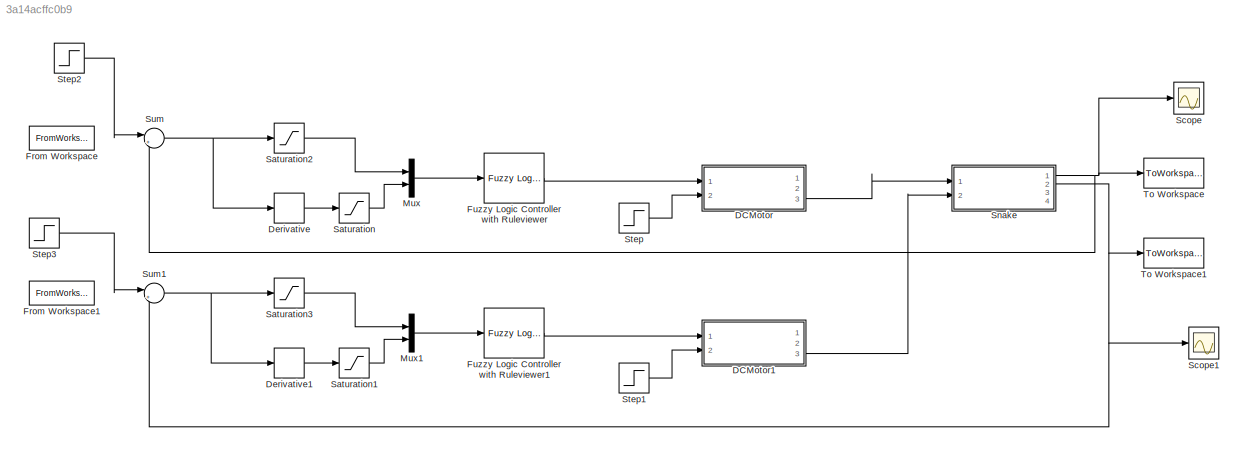
MODEL slx_3a14acffc0b9
KIND model
CONFIG AbsTol = auto
CONFIG FixedStep = 0.01
CONFIG MaxStep = auto
CONFIG MinStep = auto
CONFIG RelTol = 1e-3
CONFIG SampleTimeConstraint = Unconstrained
CONFIG Solver = FixedStepAuto
CONFIG SolverMode = Auto
CONFIG SolverName = FixedStepAuto
CONFIG StartTime = 0.0
CONFIG StopTime = 70
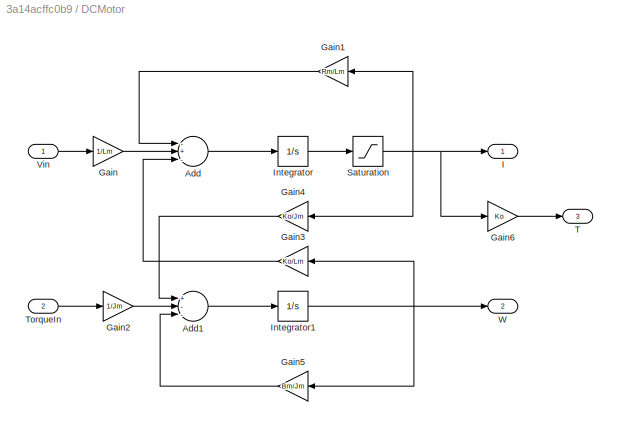
BLOCK [SubSystem] DCMotor
  Ports = [2, 3]
  RequestExecContextInheritance = off
  Variant = off
BLOCK [Sum] DCMotor/Add
  InputSameDT = off
  Inputs = -+-
  OutDataTypeStr = Inherit: Inherit via internal rule
  Ports = [3, 1]
  SaturateOnIntegerOverflow = off
BLOCK [Sum] DCMotor/Add1
  InputSameDT = off
  Inputs = +--
  OutDataTypeStr = Inherit: Inherit via internal rule
  Ports = [3, 1]
  SaturateOnIntegerOverflow = off
BLOCK [Gain] DCMotor/Gain
  Gain = 1/Lm
  OutDataTypeStr = Inherit: Inherit via internal rule
  ParamDataTypeStr = Inherit: Inherit via internal rule
  SaturateOnIntegerOverflow = off
BLOCK [Gain] DCMotor/Gain1
  Gain = Rm/Lm
  OutDataTypeStr = Inherit: Inherit via internal rule
  ParamDataTypeStr = Inherit: Inherit via internal rule
  SaturateOnIntegerOverflow = off
BLOCK [Gain] DCMotor/Gain2
  Gain = 1/Jm
  OutDataTypeStr = Inherit: Inherit via internal rule
  ParamDataTypeStr = Inherit: Inherit via internal rule
  SaturateOnIntegerOverflow = off
BLOCK [Gain] DCMotor/Gain3
  Gain = Ko/Lm
  OutDataTypeStr = Inherit: Inherit via internal rule
  ParamDataTypeStr = Inherit: Inherit via internal rule
  SaturateOnIntegerOverflow = off
BLOCK [Gain] DCMotor/Gain4
  Gain = Ko/Jm
  OutDataTypeStr = Inherit: Inherit via internal rule
  ParamDataTypeStr = Inherit: Inherit via internal rule
  SaturateOnIntegerOverflow = off
BLOCK [Gain] DCMotor/Gain5
  Gain = Bm/Jm
  OutDataTypeStr = Inherit: Inherit via internal rule
  ParamDataTypeStr = Inherit: Inherit via internal rule
  SaturateOnIntegerOverflow = off
BLOCK [Gain] DCMotor/Gain6
  Gain = Ko
  OutDataTypeStr = Inherit: Inherit via internal rule
  ParamDataTypeStr = Inherit: Inherit via internal rule
  SaturateOnIntegerOverflow = off
BLOCK [Outport] DCMotor/I
  IconDisplay = Port number
BLOCK [Integrator] DCMotor/Integrator
  Ports = [1, 1]
BLOCK [Integrator] DCMotor/Integrator1
  Ports = [1, 1]
BLOCK [Saturate] DCMotor/Saturation
  InputPortMap = u0
  LowerLimit = -3.5
  Ports = [1, 1]
  UpperLimit = 3.5
BLOCK [Outport] DCMotor/T
  IconDisplay = Port number
  Port = 3
BLOCK [Inport] DCMotor/TorqueIn
  IconDisplay = Port number
  Port = 2
BLOCK [Inport] DCMotor/Vin
  IconDisplay = Port number
BLOCK [Outport] DCMotor/W
  IconDisplay = Port number
  Port = 2
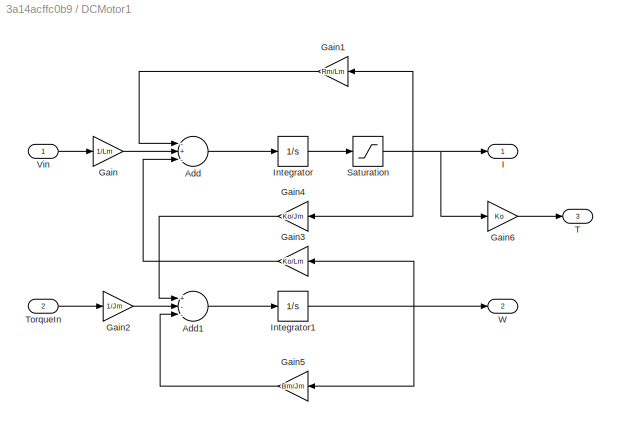
BLOCK [SubSystem] DCMotor1
  Ports = [2, 3]
  RequestExecContextInheritance = off
  Variant = off
BLOCK [Sum] DCMotor1/Add
  InputSameDT = off
  Inputs = -+-
  OutDataTypeStr = Inherit: Inherit via internal rule
  Ports = [3, 1]
  SaturateOnIntegerOverflow = off
BLOCK [Sum] DCMotor1/Add1
  InputSameDT = off
  Inputs = +--
  OutDataTypeStr = Inherit: Inherit via internal rule
  Ports = [3, 1]
  SaturateOnIntegerOverflow = off
BLOCK [Gain] DCMotor1/Gain
  Gain = 1/Lm
  OutDataTypeStr = Inherit: Inherit via internal rule
  ParamDataTypeStr = Inherit: Inherit via internal rule
  SaturateOnIntegerOverflow = off
BLOCK [Gain] DCMotor1/Gain1
  Gain = Rm/Lm
  OutDataTypeStr = Inherit: Inherit via internal rule
  ParamDataTypeStr = Inherit: Inherit via internal rule
  SaturateOnIntegerOverflow = off
BLOCK [Gain] DCMotor1/Gain2
  Gain = 1/Jm
  OutDataTypeStr = Inherit: Inherit via internal rule
  ParamDataTypeStr = Inherit: Inherit via internal rule
  SaturateOnIntegerOverflow = off
BLOCK [Gain] DCMotor1/Gain3
  Gain = Ko/Lm
  OutDataTypeStr = Inherit: Inherit via internal rule
  ParamDataTypeStr = Inherit: Inherit via internal rule
  SaturateOnIntegerOverflow = off
BLOCK [Gain] DCMotor1/Gain4
  Gain = Ko/Jm
  OutDataTypeStr = Inherit: Inherit via internal rule
  ParamDataTypeStr = Inherit: Inherit via internal rule
  SaturateOnIntegerOverflow = off
BLOCK [Gain] DCMotor1/Gain5
  Gain = Bm/Jm
  OutDataTypeStr = Inherit: Inherit via internal rule
  ParamDataTypeStr = Inherit: Inherit via internal rule
  SaturateOnIntegerOverflow = off
BLOCK [Gain] DCMotor1/Gain6
  Gain = Ko
  OutDataTypeStr = Inherit: Inherit via internal rule
  ParamDataTypeStr = Inherit: Inherit via internal rule
  SaturateOnIntegerOverflow = off
BLOCK [Outport] DCMotor1/I
  IconDisplay = Port number
BLOCK [Integrator] DCMotor1/Integrator
  Ports = [1, 1]
BLOCK [Integrator] DCMotor1/Integrator1
  Ports = [1, 1]
BLOCK [Saturate] DCMotor1/Saturation
  InputPortMap = u0
  LowerLimit = -3.5
  Ports = [1, 1]
  UpperLimit = 3.5
BLOCK [Outport] DCMotor1/T
  IconDisplay = Port number
  Port = 3
BLOCK [Inport] DCMotor1/TorqueIn
  IconDisplay = Port number
  Port = 2
BLOCK [Inport] DCMotor1/Vin
  IconDisplay = Port number
BLOCK [Outport] DCMotor1/W
  IconDisplay = Port number
  Port = 2
BLOCK [Derivative] Derivative
BLOCK [Derivative] Derivative1
BLOCK [FromWorkspace] From Workspace
  VariableName = [t', O1Ref']
  ZeroCross = on
BLOCK [FromWorkspace] From Workspace1
  VariableName = [t', O2Ref']
  ZeroCross = on
BLOCK [Reference] Fuzzy Logic Controller with Ruleviewer  REF=fuzblock/Fuzzy Logic   (lib defined in mdl_858b3b3e7478)
Controller 
with Ruleviewer
  Ports = [1, 1]
  SourceBlock = fuzblock/Fuzzy Logic \nController \nwith Ruleviewer
  SourceType = FIS
BLOCK [Reference] Fuzzy Logic Controller with Ruleviewer1  REF=fuzblock/Fuzzy Logic   (lib defined in mdl_858b3b3e7478)
Controller 
with Ruleviewer
  Ports = [1, 1]
  SourceBlock = fuzblock/Fuzzy Logic \nController \nwith Ruleviewer
  SourceType = FIS
BLOCK [Mux] Mux
  DisplayOption = bar
  Inputs = 2
  Ports = [2, 1]
BLOCK [Mux] Mux1
  DisplayOption = bar
  Inputs = 2
  Ports = [2, 1]
BLOCK [Saturate] Saturation
  InputPortMap = u0
  LowerLimit = -pi
  Ports = [1, 1]
  UpperLimit = pi
BLOCK [Saturate] Saturation1
  InputPortMap = u0
  LowerLimit = -pi
  Ports = [1, 1]
  UpperLimit = pi
BLOCK [Saturate] Saturation2
  InputPortMap = u0
  LowerLimit = -pi/2
  Ports = [1, 1]
  UpperLimit = pi/2
BLOCK [Saturate] Saturation3
  InputPortMap = u0
  LowerLimit = -pi/2
  Ports = [1, 1]
  UpperLimit = pi/2
BLOCK [Scope] Scope
  Ports = [1]
  ScopeSpecificationString = Simulink.scopes.TimeScopeBlockCfg('CurrentConfiguration', extmgr.ConfigurationSet(extmgr.Configuration('Core','General UI',true),extmgr.Configuration('Core','Source UI',true),extmgr.Configuration('Sources','WiredSimulink',true),extmgr.Configuration('Visuals','Time Domain',true,'SerializedDisplays',{struct('MinYLimReal','-0.12473','MaxYLimReal','1.12255','YLabelReal','','MinYLimMag','0.00000','MaxY...<+1327ch>
BLOCK [Scope] Scope1
  Ports = [1]
  ScopeSpecificationString = Simulink.scopes.TimeScopeBlockCfg('CurrentConfiguration', extmgr.ConfigurationSet(extmgr.Configuration('Core','General UI',true),extmgr.Configuration('Core','Source UI',true),extmgr.Configuration('Sources','WiredSimulink',true,'DataLoggingVariableName','ScopeData1'),extmgr.Configuration('Visuals','Time Domain',true,'SerializedDisplays',{struct('MinYLimReal','-0.12473','MaxYLimReal','1.12255','YLab...<+1366ch>
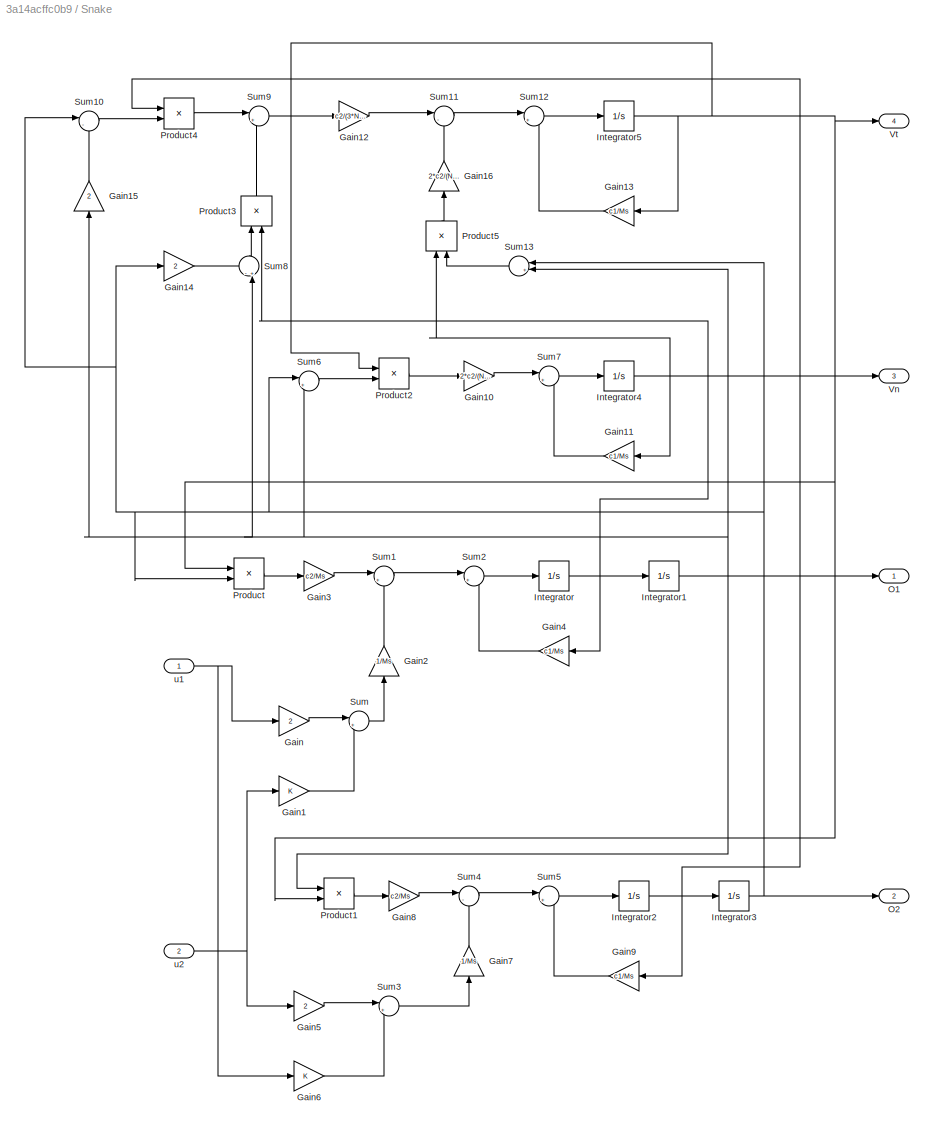
BLOCK [SubSystem] Snake
  Ports = [2, 4]
  RequestExecContextInheritance = off
  Variant = off
BLOCK [Gain] Snake/Gain
  Gain = 2
  OutDataTypeStr = Inherit: Inherit via internal rule
  ParamDataTypeStr = Inherit: Inherit via internal rule
  SaturateOnIntegerOverflow = off
BLOCK [Gain] Snake/Gain1
  OutDataTypeStr = Inherit: Inherit via internal rule
  ParamDataTypeStr = Inherit: Inherit via internal rule
  SaturateOnIntegerOverflow = off
BLOCK [Gain] Snake/Gain10
  Gain = 2*c2/(N*Ms)
  OutDataTypeStr = Inherit: Inherit via internal rule
  ParamDataTypeStr = Inherit: Inherit via internal rule
  SaturateOnIntegerOverflow = off
BLOCK [Gain] Snake/Gain11
  Gain = c1/Ms
  OutDataTypeStr = Inherit: Inherit via internal rule
  ParamDataTypeStr = Inherit: Inherit via internal rule
  SaturateOnIntegerOverflow = off
BLOCK [Gain] Snake/Gain12
  Gain = c2/(3*N*Ms)
  OutDataTypeStr = Inherit: Inherit via internal rule
  ParamDataTypeStr = Inherit: Inherit via internal rule
  SaturateOnIntegerOverflow = off
BLOCK [Gain] Snake/Gain13
  Gain = c1/Ms
  OutDataTypeStr = Inherit: Inherit via internal rule
  ParamDataTypeStr = Inherit: Inherit via internal rule
  SaturateOnIntegerOverflow = off
BLOCK [Gain] Snake/Gain14
  Gain = 2
  OutDataTypeStr = Inherit: Inherit via internal rule
  ParamDataTypeStr = Inherit: Inherit via internal rule
  SaturateOnIntegerOverflow = off
BLOCK [Gain] Snake/Gain15
  Gain = 2
  OutDataTypeStr = Inherit: Inherit via internal rule
  ParamDataTypeStr = Inherit: Inherit via internal rule
  SaturateOnIntegerOverflow = off
BLOCK [Gain] Snake/Gain16
  Gain = 2*c2/(N*Ms)
  OutDataTypeStr = Inherit: Inherit via internal rule
  ParamDataTypeStr = Inherit: Inherit via internal rule
  SaturateOnIntegerOverflow = off
BLOCK [Gain] Snake/Gain2
  Gain = 1/Ms
  OutDataTypeStr = Inherit: Inherit via internal rule
  ParamDataTypeStr = Inherit: Inherit via internal rule
  SaturateOnIntegerOverflow = off
BLOCK [Gain] Snake/Gain3
  Gain = c2/Ms
  OutDataTypeStr = Inherit: Inherit via internal rule
  ParamDataTypeStr = Inherit: Inherit via internal rule
  SaturateOnIntegerOverflow = off
BLOCK [Gain] Snake/Gain4
  Gain = c1/Ms
  OutDataTypeStr = Inherit: Inherit via internal rule
  ParamDataTypeStr = Inherit: Inherit via internal rule
  SaturateOnIntegerOverflow = off
BLOCK [Gain] Snake/Gain5
  Gain = 2
  OutDataTypeStr = Inherit: Inherit via internal rule
  ParamDataTypeStr = Inherit: Inherit via internal rule
  SaturateOnIntegerOverflow = off
BLOCK [Gain] Snake/Gain6
  OutDataTypeStr = Inherit: Inherit via internal rule
  ParamDataTypeStr = Inherit: Inherit via internal rule
  SaturateOnIntegerOverflow = off
BLOCK [Gain] Snake/Gain7
  Gain = 1/Ms
  OutDataTypeStr = Inherit: Inherit via internal rule
  ParamDataTypeStr = Inherit: Inherit via internal rule
  SaturateOnIntegerOverflow = off
BLOCK [Gain] Snake/Gain8
  Gain = c2/Ms
  OutDataTypeStr = Inherit: Inherit via internal rule
  ParamDataTypeStr = Inherit: Inherit via internal rule
  SaturateOnIntegerOverflow = off
BLOCK [Gain] Snake/Gain9
  Gain = c1/Ms
  OutDataTypeStr = Inherit: Inherit via internal rule
  ParamDataTypeStr = Inherit: Inherit via internal rule
  SaturateOnIntegerOverflow = off
BLOCK [Integrator] Snake/Integrator
  Ports = [1, 1]
BLOCK [Integrator] Snake/Integrator1
  Ports = [1, 1]
BLOCK [Integrator] Snake/Integrator2
  Ports = [1, 1]
BLOCK [Integrator] Snake/Integrator3
  Ports = [1, 1]
BLOCK [Integrator] Snake/Integrator4
  Ports = [1, 1]
BLOCK [Integrator] Snake/Integrator5
  Ports = [1, 1]
BLOCK [Outport] Snake/O1
  IconDisplay = Port number
BLOCK [Outport] Snake/O2
  IconDisplay = Port number
  Port = 2
BLOCK [Product] Snake/Product
  InputSameDT = off
  OutDataTypeStr = Inherit: Inherit via internal rule
  Ports = [2, 1]
  RndMeth = Floor
  SaturateOnIntegerOverflow = off
BLOCK [Product] Snake/Product1
  InputSameDT = off
  OutDataTypeStr = Inherit: Inherit via internal rule
  Ports = [2, 1]
  RndMeth = Floor
  SaturateOnIntegerOverflow = off
BLOCK [Product] Snake/Product2
  InputSameDT = off
  OutDataTypeStr = Inherit: Inherit via internal rule
  Ports = [2, 1]
  RndMeth = Floor
  SaturateOnIntegerOverflow = off
BLOCK [Product] Snake/Product3
  InputSameDT = off
  OutDataTypeStr = Inherit: Inherit via internal rule
  Ports = [2, 1]
  RndMeth = Floor
  SaturateOnIntegerOverflow = off
BLOCK [Product] Snake/Product4
  InputSameDT = off
  OutDataTypeStr = Inherit: Inherit via internal rule
  Ports = [2, 1]
  RndMeth = Floor
  SaturateOnIntegerOverflow = off
BLOCK [Product] Snake/Product5
  InputSameDT = off
  OutDataTypeStr = Inherit: Inherit via internal rule
  Ports = [2, 1]
  RndMeth = Floor
  SaturateOnIntegerOverflow = off
BLOCK [Sum] Snake/Sum
  IconShape = round
  InputSameDT = off
  Inputs = |+-
  OutDataTypeStr = Inherit: Inherit via internal rule
  Ports = [2, 1]
  SaturateOnIntegerOverflow = off
BLOCK [Sum] Snake/Sum1
  IconShape = round
  InputSameDT = off
  Inputs = |++
  OutDataTypeStr = Inherit: Inherit via internal rule
  Ports = [2, 1]
  SaturateOnIntegerOverflow = off
BLOCK [Sum] Snake/Sum10
  IconShape = round
  InputSameDT = off
  Inputs = |-+
  OutDataTypeStr = Inherit: Inherit via internal rule
  Ports = [2, 1]
  SaturateOnIntegerOverflow = off
BLOCK [Sum] Snake/Sum11
  IconShape = round
  InputSameDT = off
  Inputs = |-+
  OutDataTypeStr = Inherit: Inherit via internal rule
  Ports = [2, 1]
  SaturateOnIntegerOverflow = off
BLOCK [Sum] Snake/Sum12
  IconShape = round
  InputSameDT = off
  Inputs = |+-
  OutDataTypeStr = Inherit: Inherit via internal rule
  Ports = [2, 1]
  SaturateOnIntegerOverflow = off
BLOCK [Sum] Snake/Sum13
  IconShape = round
  InputSameDT = off
  Inputs = |++
  OutDataTypeStr = Inherit: Inherit via internal rule
  Ports = [2, 1]
  SaturateOnIntegerOverflow = off
BLOCK [Sum] Snake/Sum2
  IconShape = round
  InputSameDT = off
  Inputs = |+-
  OutDataTypeStr = Inherit: Inherit via internal rule
  Ports = [2, 1]
  SaturateOnIntegerOverflow = off
BLOCK [Sum] Snake/Sum3
  IconShape = round
  InputSameDT = off
  Inputs = |+-
  OutDataTypeStr = Inherit: Inherit via internal rule
  Ports = [2, 1]
  SaturateOnIntegerOverflow = off
BLOCK [Sum] Snake/Sum4
  IconShape = round
  InputSameDT = off
  Inputs = |-+
  OutDataTypeStr = Inherit: Inherit via internal rule
  Ports = [2, 1]
  SaturateOnIntegerOverflow = off
BLOCK [Sum] Snake/Sum5
  IconShape = round
  InputSameDT = off
  Inputs = |+-
  OutDataTypeStr = Inherit: Inherit via internal rule
  Ports = [2, 1]
  SaturateOnIntegerOverflow = off
BLOCK [Sum] Snake/Sum6
  IconShape = round
  InputSameDT = off
  Inputs = |++
  OutDataTypeStr = Inherit: Inherit via internal rule
  Ports = [2, 1]
  SaturateOnIntegerOverflow = off
BLOCK [Sum] Snake/Sum7
  IconShape = round
  InputSameDT = off
  Inputs = |++
  OutDataTypeStr = Inherit: Inherit via internal rule
  Ports = [2, 1]
  SaturateOnIntegerOverflow = off
BLOCK [Sum] Snake/Sum8
  IconShape = round
  InputSameDT = off
  Inputs = -+|
  OutDataTypeStr = Inherit: Inherit via internal rule
  Ports = [2, 1]
  SaturateOnIntegerOverflow = off
BLOCK [Sum] Snake/Sum9
  IconShape = round
  InputSameDT = off
  Inputs = |++
  OutDataTypeStr = Inherit: Inherit via internal rule
  Ports = [2, 1]
  SaturateOnIntegerOverflow = off
BLOCK [Outport] Snake/Vn
  IconDisplay = Port number
  Port = 3
BLOCK [Outport] Snake/Vt
  IconDisplay = Port number
  Port = 4
BLOCK [Inport] Snake/u1
  IconDisplay = Port number
BLOCK [Inport] Snake/u2
  IconDisplay = Port number
  Port = 2
BLOCK [Step] Step
  After = 0
  SampleTime = 0
  Time = 0
BLOCK [Step] Step1
  After = 0
  SampleTime = 0
  Time = 0
BLOCK [Step] Step2
  SampleTime = 0
  Time = 0
BLOCK [Step] Step3
  SampleTime = 0
  Time = 0
BLOCK [Sum] Sum
  IconShape = round
  InputSameDT = off
  Inputs = |+-
  OutDataTypeStr = Inherit: Inherit via internal rule
  Ports = [2, 1]
  SaturateOnIntegerOverflow = off
BLOCK [Sum] Sum1
  IconShape = round
  InputSameDT = off
  Inputs = |+-
  OutDataTypeStr = Inherit: Inherit via internal rule
  Ports = [2, 1]
  SaturateOnIntegerOverflow = off
BLOCK [ToWorkspace] To Workspace
  FixptAsFi = on
  MaxDataPoints = inf
  Ports = [1]
  SampleTime = -1
  Save2DSignal = 3-D array (concatenate along third dimension)
  SaveFormat = Timeseries
  VariableName = O1
BLOCK [ToWorkspace] To Workspace1
  FixptAsFi = on
  MaxDataPoints = inf
  Ports = [1]
  SampleTime = -1
  Save2DSignal = 3-D array (concatenate along third dimension)
  SaveFormat = Timeseries
  VariableName = O2
LINE DCMotor/Add1:1 -> DCMotor/Integrator1:1
LINE DCMotor/Add:1 -> DCMotor/Integrator:1
LINE DCMotor/Gain1:1 -> DCMotor/Add:1
LINE DCMotor/Gain2:1 -> DCMotor/Add1:2
LINE DCMotor/Gain3:1 -> DCMotor/Add:3
LINE DCMotor/Gain4:1 -> DCMotor/Add1:1
LINE DCMotor/Gain5:1 -> DCMotor/Add1:3
LINE DCMotor/Gain6:1 -> DCMotor/T:1
LINE DCMotor/Gain:1 -> DCMotor/Add:2
NET DCMotor/Integrator1:1 -> DCMotor/Gain3:1, DCMotor/Gain5:1, DCMotor/W:1
LINE DCMotor/Integrator:1 -> DCMotor/Saturation:1
NET DCMotor/Saturation:1 -> DCMotor/Gain1:1, DCMotor/Gain4:1, DCMotor/Gain6:1, DCMotor/I:1
LINE DCMotor/TorqueIn:1 -> DCMotor/Gain2:1
LINE DCMotor/Vin:1 -> DCMotor/Gain:1
LINE DCMotor1/Add1:1 -> DCMotor1/Integrator1:1
LINE DCMotor1/Add:1 -> DCMotor1/Integrator:1
LINE DCMotor1/Gain1:1 -> DCMotor1/Add:1
LINE DCMotor1/Gain2:1 -> DCMotor1/Add1:2
LINE DCMotor1/Gain3:1 -> DCMotor1/Add:3
LINE DCMotor1/Gain4:1 -> DCMotor1/Add1:1
LINE DCMotor1/Gain5:1 -> DCMotor1/Add1:3
LINE DCMotor1/Gain6:1 -> DCMotor1/T:1
LINE DCMotor1/Gain:1 -> DCMotor1/Add:2
NET DCMotor1/Integrator1:1 -> DCMotor1/Gain3:1, DCMotor1/Gain5:1, DCMotor1/W:1
LINE DCMotor1/Integrator:1 -> DCMotor1/Saturation:1
NET DCMotor1/Saturation:1 -> DCMotor1/Gain1:1, DCMotor1/Gain4:1, DCMotor1/Gain6:1, DCMotor1/I:1
LINE DCMotor1/TorqueIn:1 -> DCMotor1/Gain2:1
LINE DCMotor1/Vin:1 -> DCMotor1/Gain:1
LINE DCMotor1:3 -> Snake:2
LINE DCMotor:3 -> Snake:1
LINE Derivative1:1 -> Saturation1:1
LINE Derivative:1 -> Saturation:1
LINE Fuzzy Logic Controller with Ruleviewer1:1 -> DCMotor1:1
LINE Fuzzy Logic Controller with Ruleviewer:1 -> DCMotor:1
LINE Mux1:1 -> Fuzzy Logic Controller with Ruleviewer1:1
LINE Mux:1 -> Fuzzy Logic Controller with Ruleviewer:1
LINE Saturation1:1 -> Mux1:2
LINE Saturation2:1 -> Mux:1
LINE Saturation3:1 -> Mux1:1
LINE Saturation:1 -> Mux:2
LINE Snake/Gain10:1 -> Snake/Sum7:1
LINE Snake/Gain11:1 -> Snake/Sum7:2
LINE Snake/Gain12:1 -> Snake/Sum11:1
LINE Snake/Gain13:1 -> Snake/Sum12:2
LINE Snake/Gain14:1 -> Snake/Sum8:1
LINE Snake/Gain15:1 -> Snake/Sum10:2
LINE Snake/Gain16:1 -> Snake/Sum11:2
LINE Snake/Gain1:1 -> Snake/Sum:2
LINE Snake/Gain2:1 -> Snake/Sum1:2
LINE Snake/Gain3:1 -> Snake/Sum1:1
LINE Snake/Gain4:1 -> Snake/Sum2:2
LINE Snake/Gain5:1 -> Snake/Sum3:1
LINE Snake/Gain6:1 -> Snake/Sum3:2
LINE Snake/Gain7:1 -> Snake/Sum4:2
LINE Snake/Gain8:1 -> Snake/Sum4:1
LINE Snake/Gain9:1 -> Snake/Sum5:2
LINE Snake/Gain:1 -> Snake/Sum:1
NET Snake/Integrator1:1 -> Snake/Gain15:1, Snake/O1:1, Snake/Product1:1, Snake/Sum13:2, Snake/Sum6:2, Snake/Sum8:2
NET Snake/Integrator2:1 -> Snake/Gain9:1, Snake/Integrator3:1, Snake/Product4:1
NET Snake/Integrator3:1 -> Snake/Gain14:1, Snake/O2:1, Snake/Product:2, Snake/Sum10:1, Snake/Sum13:1, Snake/Sum6:1
NET Snake/Integrator4:1 -> Snake/Gain11:1, Snake/Product5:1, Snake/Vn:1
NET Snake/Integrator5:1 -> Snake/Gain13:1, Snake/Product1:2, Snake/Product2:1, Snake/Product:1, Snake/Vt:1
NET Snake/Integrator:1 -> Snake/Gain4:1, Snake/Integrator1:1, Snake/Product3:2
LINE Snake/Product1:1 -> Snake/Gain8:1
LINE Snake/Product2:1 -> Snake/Gain10:1
LINE Snake/Product3:1 -> Snake/Sum9:2
LINE Snake/Product4:1 -> Snake/Sum9:1
LINE Snake/Product5:1 -> Snake/Gain16:1
LINE Snake/Product:1 -> Snake/Gain3:1
LINE Snake/Sum10:1 -> Snake/Product4:2
LINE Snake/Sum11:1 -> Snake/Sum12:1
LINE Snake/Sum12:1 -> Snake/Integrator5:1
LINE Snake/Sum13:1 -> Snake/Product5:2
LINE Snake/Sum1:1 -> Snake/Sum2:1
LINE Snake/Sum2:1 -> Snake/Integrator:1
LINE Snake/Sum3:1 -> Snake/Gain7:1
LINE Snake/Sum4:1 -> Snake/Sum5:1
LINE Snake/Sum5:1 -> Snake/Integrator2:1
LINE Snake/Sum6:1 -> Snake/Product2:2
LINE Snake/Sum7:1 -> Snake/Integrator4:1
LINE Snake/Sum8:1 -> Snake/Product3:1
LINE Snake/Sum9:1 -> Snake/Gain12:1
LINE Snake/Sum:1 -> Snake/Gain2:1
NET Snake/u1:1 -> Snake/Gain6:1, Snake/Gain:1
NET Snake/u2:1 -> Snake/Gain1:1, Snake/Gain5:1
NET Snake:1 -> Scope:1, Sum:2, To Workspace:1
NET Snake:2 -> Scope1:1, Sum1:2, To Workspace1:1
LINE Step1:1 -> DCMotor1:2
LINE Step2:1 -> Sum:1
LINE Step3:1 -> Sum1:1
LINE Step:1 -> DCMotor:2
NET Sum1:1 -> Derivative1:1, Saturation3:1
NET Sum:1 -> Derivative:1, Saturation2:1
note: NET lines group one-source signal fan-out (src -> all destinations, sorted); 1:1 wires keep LINE
